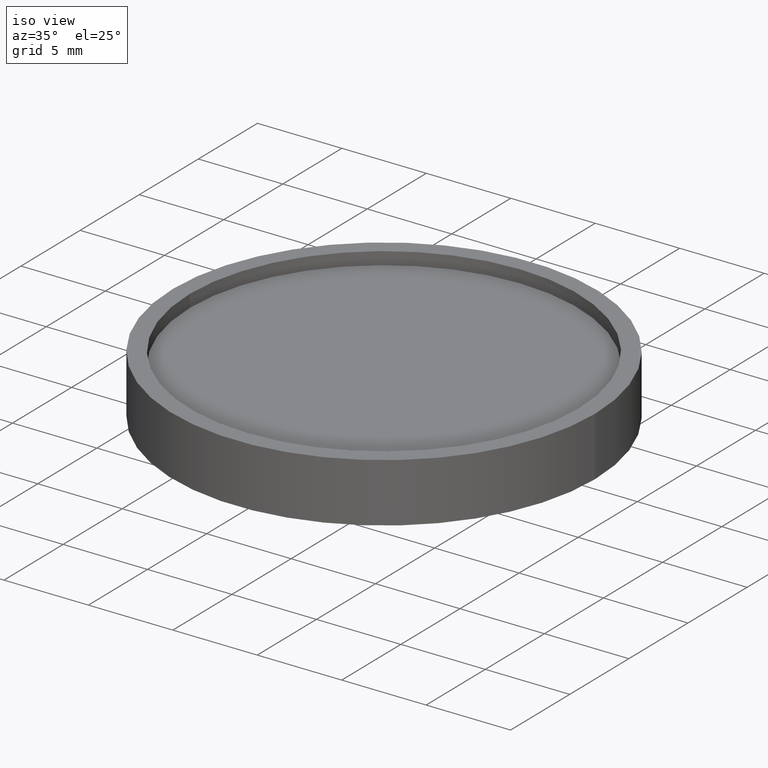
[diagram: clean part render]
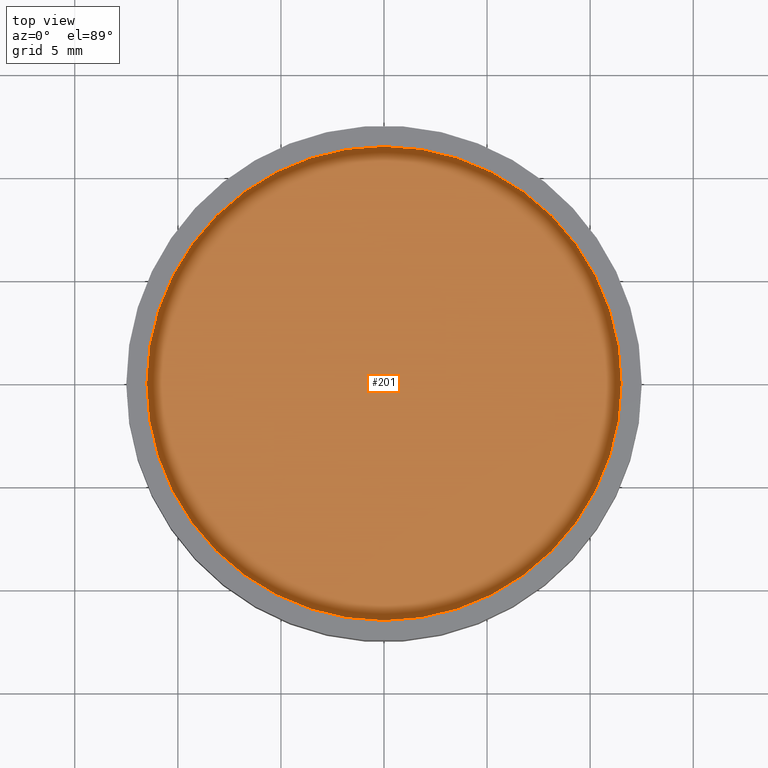
[diagram: tour spotlight — one face highlighted and labeled with its STEP entity id]
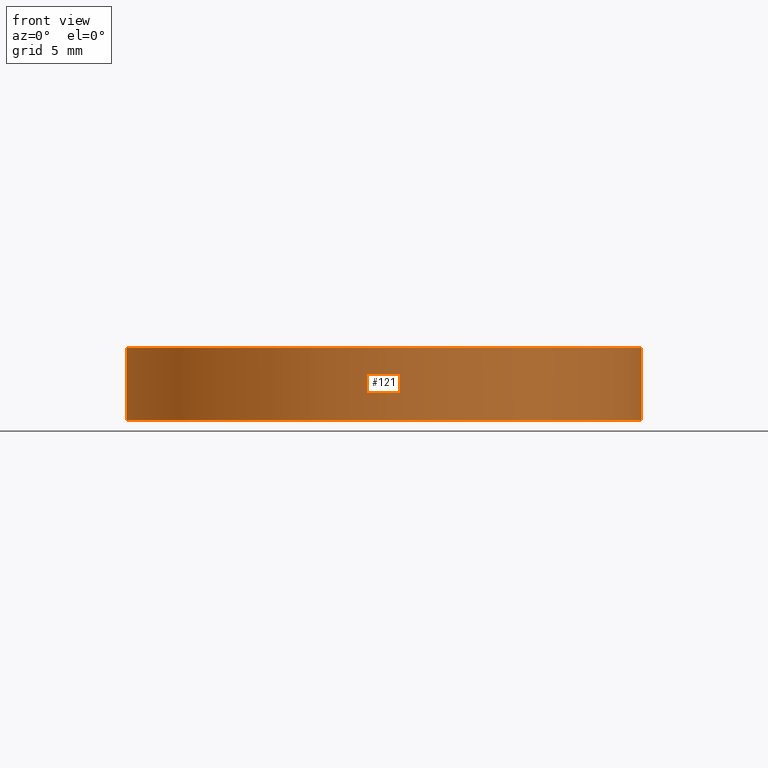
[diagram: tour spotlight — one face highlighted and labeled with its STEP entity id]
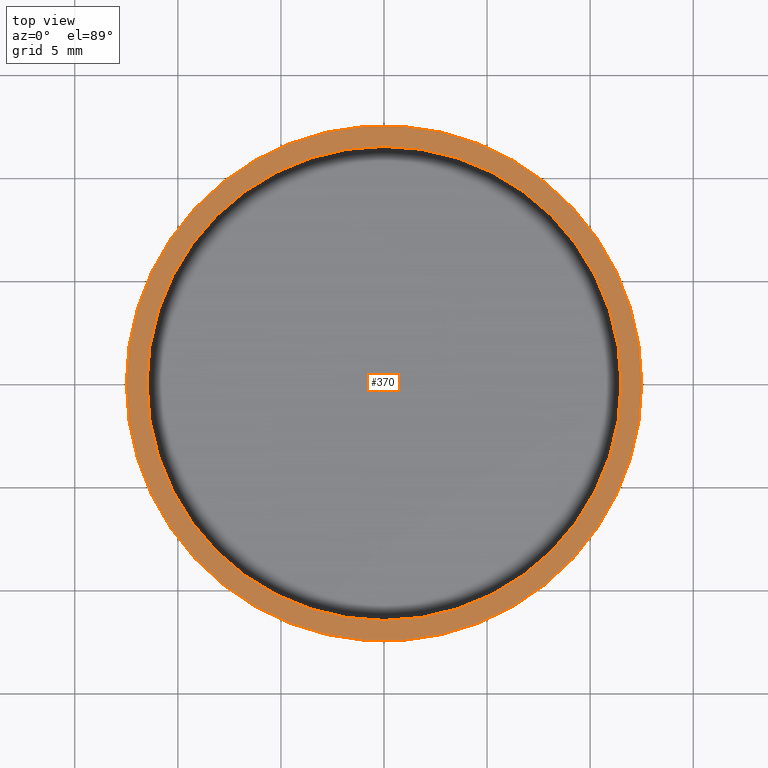
[diagram: tour spotlight — one face highlighted and labeled with its STEP entity id]
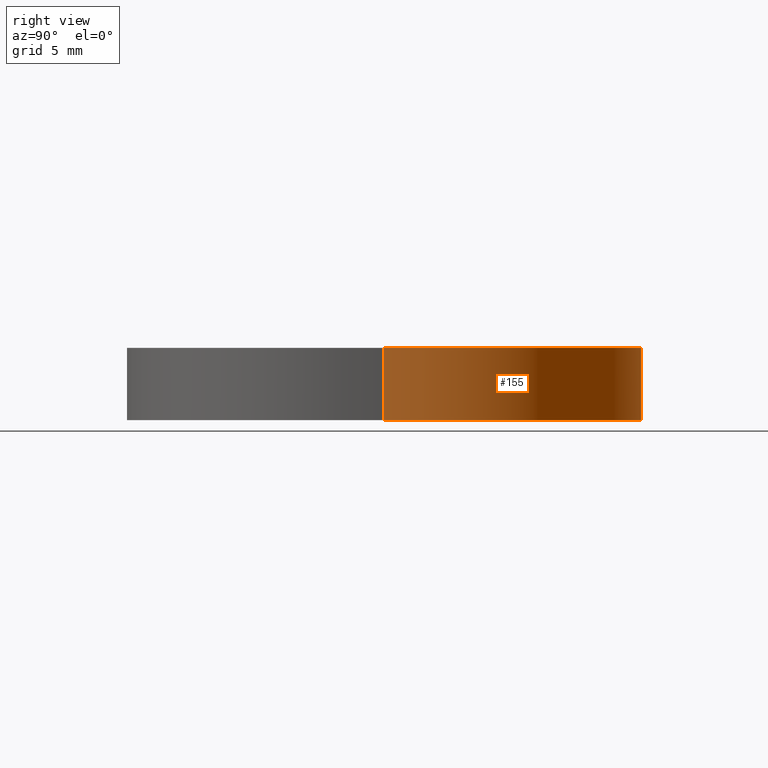
[diagram: tour spotlight — one face highlighted and labeled with its STEP entity id]
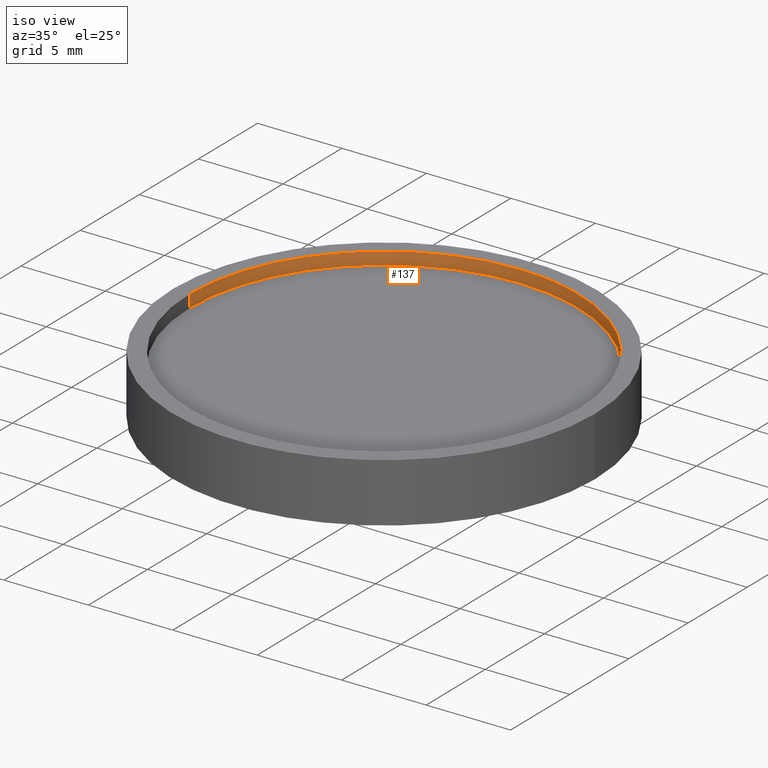
[diagram: tour spotlight — one face highlighted and labeled with its STEP entity id]
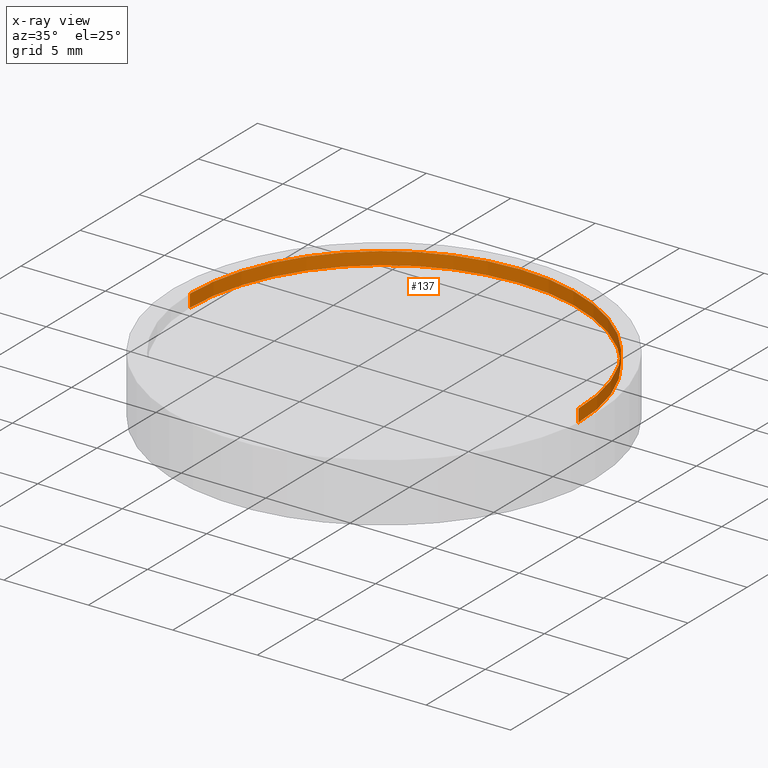
[diagram: x-ray of the same camera — body ghosted, this tour face saturated]
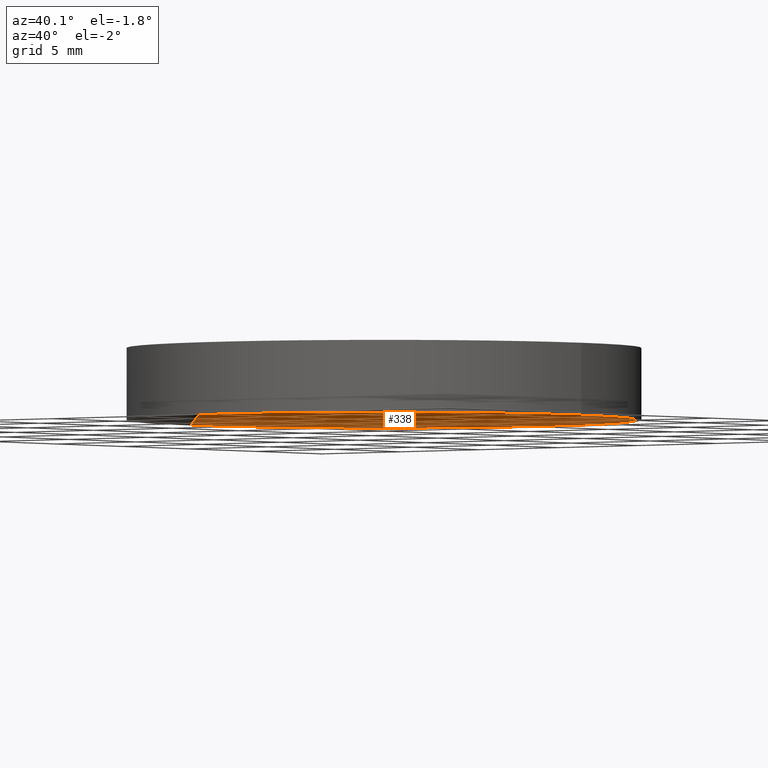
[diagram: tour spotlight — one face highlighted and labeled with its STEP entity id]
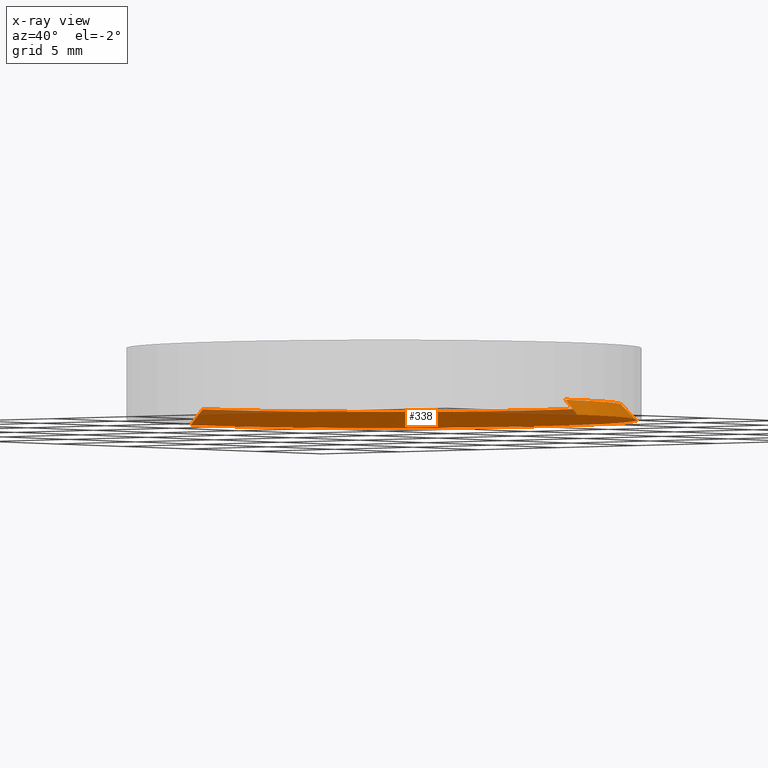
[diagram: x-ray of the same camera — body ghosted, this tour face saturated]
A machine part: a face-by-face anatomy tour. The part has 10 B-rep faces; the first image is the clean iso view, then the 6 largest visible faces are spotlighted one at a time (largest first), each with its STEP entity span.

Face 1 — top view, entity #201. In plain terms, the highlighted planar face has unit normal (0, 0, 1).
Definition (entity closure, byte-faithful):
#1 = EDGE_CURVE ( 'NONE', #127, #340, #187, .T. ) ;
#28 = CARTESIAN_POINT ( 'NONE',  ( 0.000000000000000000, 0.000000000000000000, 2.750000000000000000 ) ) ;
#42 = CARTESIAN_POINT ( 'NONE',  ( 0.000000000000000000, 0.000000000000000000, 2.750000000000000000 ) ) ;
#60 = FACE_OUTER_BOUND ( 'NONE', #249, .T. ) ;
#95 = DIRECTION ( 'NONE',  ( 1.000000000000000000, 0.000000000000000000, -0.000000000000000000 ) ) ;
#111 = AXIS2_PLACEMENT_3D ( 'NONE', #140, #160, #363 ) ;
#126 = DIRECTION ( 'NONE',  ( 0.000000000000000000, 0.000000000000000000, 1.000000000000000000 ) ) ;
#127 = VERTEX_POINT ( 'NONE', #245 ) ;
#140 = CARTESIAN_POINT ( 'NONE',  ( 0.000000000000000000, 0.000000000000000000, 2.750000000000000000 ) ) ;
#160 = DIRECTION ( 'NONE',  ( 0.000000000000000000, 0.000000000000000000, 1.000000000000000000 ) ) ;
#171 = DIRECTION ( 'NONE',  ( 0.000000000000000000, 0.000000000000000000, 1.000000000000000000 ) ) ;
#182 = AXIS2_PLACEMENT_3D ( 'NONE', #28, #126, #95 ) ;
#187 = CIRCLE ( 'NONE', #326, 11.50000000000000000 ) ;
#189 = PLANE ( 'NONE',  #182 ) ;
#201 = ADVANCED_FACE ( 'NONE', ( #60 ), #189, .T. ) ;
#245 = CARTESIAN_POINT ( 'NONE',  ( 11.50000000000000000, 0.000000000000000000, 2.750000000000000000 ) ) ;
#249 = EDGE_LOOP ( 'NONE', ( #377, #379 ) ) ;
#269 = EDGE_CURVE ( 'NONE', #340, #127, #322, .T. ) ;
#301 = DIRECTION ( 'NONE',  ( 1.000000000000000000, 0.000000000000000000, 0.000000000000000000 ) ) ;
#322 = CIRCLE ( 'NONE', #111, 11.50000000000000000 ) ;
#326 = AXIS2_PLACEMENT_3D ( 'NONE', #42, #171, #301 ) ;
#340 = VERTEX_POINT ( 'NONE', #385 ) ;
#363 = DIRECTION ( 'NONE',  ( 1.000000000000000000, 0.000000000000000000, 0.000000000000000000 ) ) ;
#377 = ORIENTED_EDGE ( 'NONE', *, *, #1, .T. ) ;
#379 = ORIENTED_EDGE ( 'NONE', *, *, #269, .T. ) ;
#385 = CARTESIAN_POINT ( 'NONE',  ( -11.50000000000000000, 1.408343819019456176E-15, 2.750000000000000000 ) ) ;

Face 2 — front view, entity #121. In plain terms, the highlighted cylindrical surface (partial cylindrical patch) has radius 12.5 mm, axis along (-0, -0, -1).
Definition (entity closure, byte-faithful):
#3 = CYLINDRICAL_SURFACE ( 'NONE', #248, 12.50000000000000000 ) ;
#8 = AXIS2_PLACEMENT_3D ( 'NONE', #204, #136, #351 ) ;
#26 = VECTOR ( 'NONE', #238, 1000.000000000000000 ) ;
#30 = DIRECTION ( 'NONE',  ( 0.000000000000000000, 0.000000000000000000, 1.000000000000000000 ) ) ;
#31 = CARTESIAN_POINT ( 'NONE',  ( -12.50000000000000000, 0.000000000000000000, 3.500000000000000000 ) ) ;
#56 = AXIS2_PLACEMENT_3D ( 'NONE', #63, #30, #412 ) ;
#63 = CARTESIAN_POINT ( 'NONE',  ( 0.000000000000000000, 0.000000000000000000, 0.000000000000000000 ) ) ;
#67 = EDGE_LOOP ( 'NONE', ( #72, #159, #222, #409 ) ) ;
#72 = ORIENTED_EDGE ( 'NONE', *, *, #75, .F. ) ;
#75 = EDGE_CURVE ( 'NONE', #183, #284, #138, .T. ) ;
#106 = EDGE_CURVE ( 'NONE', #185, #183, #279, .T. ) ;
#116 = DIRECTION ( 'NONE',  ( -1.000000000000000000, 0.000000000000000000, 0.000000000000000000 ) ) ;
#121 = ADVANCED_FACE ( 'NONE', ( #232 ), #3, .T. ) ;
#136 = DIRECTION ( 'NONE',  ( 0.000000000000000000, 0.000000000000000000, 1.000000000000000000 ) ) ;
#138 = LINE ( 'NONE', #420, #286 ) ;
#150 = EDGE_CURVE ( 'NONE', #185, #293, #206, .T. ) ;
#159 = ORIENTED_EDGE ( 'NONE', *, *, #106, .F. ) ;
#183 = VERTEX_POINT ( 'NONE', #398 ) ;
#185 = VERTEX_POINT ( 'NONE', #31 ) ;
#204 = CARTESIAN_POINT ( 'NONE',  ( 0.000000000000000000, 0.000000000000000000, 3.500000000000000000 ) ) ;
#206 = LINE ( 'NONE', #215, #26 ) ;
#211 = EDGE_CURVE ( 'NONE', #293, #284, #235, .T. ) ;
#215 = CARTESIAN_POINT ( 'NONE',  ( -12.50000000000000000, 0.000000000000000000, 3.500000000000000000 ) ) ;
#222 = ORIENTED_EDGE ( 'NONE', *, *, #150, .T. ) ;
#231 = CARTESIAN_POINT ( 'NONE',  ( 12.50000000000000000, 1.530808498934191521E-15, 0.000000000000000000 ) ) ;
#232 = FACE_OUTER_BOUND ( 'NONE', #67, .T. ) ;
#235 = CIRCLE ( 'NONE', #56, 12.50000000000000000 ) ;
#238 = DIRECTION ( 'NONE',  ( -0.000000000000000000, -0.000000000000000000, -1.000000000000000000 ) ) ;
#248 = AXIS2_PLACEMENT_3D ( 'NONE', #402, #312, #116 ) ;
#267 = DIRECTION ( 'NONE',  ( -0.000000000000000000, -0.000000000000000000, -1.000000000000000000 ) ) ;
#279 = CIRCLE ( 'NONE', #8, 12.50000000000000000 ) ;
#284 = VERTEX_POINT ( 'NONE', #231 ) ;
#286 = VECTOR ( 'NONE', #267, 1000.000000000000000 ) ;
#293 = VERTEX_POINT ( 'NONE', #350 ) ;
#312 = DIRECTION ( 'NONE',  ( -0.000000000000000000, -0.000000000000000000, -1.000000000000000000 ) ) ;
#350 = CARTESIAN_POINT ( 'NONE',  ( -12.50000000000000000, 0.000000000000000000, 0.000000000000000000 ) ) ;
#351 = DIRECTION ( 'NONE',  ( 1.000000000000000000, 0.000000000000000000, 0.000000000000000000 ) ) ;
#398 = CARTESIAN_POINT ( 'NONE',  ( 12.50000000000000000, 1.530808498934191521E-15, 3.500000000000000000 ) ) ;
#402 = CARTESIAN_POINT ( 'NONE',  ( 0.000000000000000000, 0.000000000000000000, 3.500000000000000000 ) ) ;
#409 = ORIENTED_EDGE ( 'NONE', *, *, #211, .T. ) ;
#412 = DIRECTION ( 'NONE',  ( 1.000000000000000000, 0.000000000000000000, 0.000000000000000000 ) ) ;
#420 = CARTESIAN_POINT ( 'NONE',  ( 12.50000000000000000, 1.530808498934191521E-15, 3.500000000000000000 ) ) ;

Face 3 — top view, entity #370. In plain terms, the highlighted planar face has unit normal (0, 0, 1).
Definition (entity closure, byte-faithful):
#7 = CIRCLE ( 'NONE', #52, 11.50000000000000000 ) ;
#8 = AXIS2_PLACEMENT_3D ( 'NONE', #204, #136, #351 ) ;
#12 = FACE_BOUND ( 'NONE', #349, .T. ) ;
#29 = ORIENTED_EDGE ( 'NONE', *, *, #106, .T. ) ;
#31 = CARTESIAN_POINT ( 'NONE',  ( -12.50000000000000000, 0.000000000000000000, 3.500000000000000000 ) ) ;
#36 = PLANE ( 'NONE',  #165 ) ;
#39 = AXIS2_PLACEMENT_3D ( 'NONE', #278, #157, #282 ) ;
#52 = AXIS2_PLACEMENT_3D ( 'NONE', #280, #364, #240 ) ;
#71 = DIRECTION ( 'NONE',  ( 0.000000000000000000, 0.000000000000000000, 1.000000000000000000 ) ) ;
#73 = EDGE_LOOP ( 'NONE', ( #29, #97 ) ) ;
#97 = ORIENTED_EDGE ( 'NONE', *, *, #358, .T. ) ;
#106 = EDGE_CURVE ( 'NONE', #185, #183, #279, .T. ) ;
#136 = DIRECTION ( 'NONE',  ( 0.000000000000000000, 0.000000000000000000, 1.000000000000000000 ) ) ;
#147 = CARTESIAN_POINT ( 'NONE',  ( -11.50000000000000000, 1.408343819019456176E-15, 3.500000000000000000 ) ) ;
#149 = CARTESIAN_POINT ( 'NONE',  ( 0.000000000000000000, 0.000000000000000000, 3.500000000000000000 ) ) ;
#151 = DIRECTION ( 'NONE',  ( 1.000000000000000000, 0.000000000000000000, -0.000000000000000000 ) ) ;
#157 = DIRECTION ( 'NONE',  ( 0.000000000000000000, 0.000000000000000000, 1.000000000000000000 ) ) ;
#158 = VERTEX_POINT ( 'NONE', #147 ) ;
#161 = EDGE_CURVE ( 'NONE', #223, #158, #7, .T. ) ;
#165 = AXIS2_PLACEMENT_3D ( 'NONE', #149, #287, #151 ) ;
#174 = DIRECTION ( 'NONE',  ( 1.000000000000000000, 0.000000000000000000, 0.000000000000000000 ) ) ;
#183 = VERTEX_POINT ( 'NONE', #398 ) ;
#185 = VERTEX_POINT ( 'NONE', #31 ) ;
#204 = CARTESIAN_POINT ( 'NONE',  ( 0.000000000000000000, 0.000000000000000000, 3.500000000000000000 ) ) ;
#219 = ORIENTED_EDGE ( 'NONE', *, *, #161, .F. ) ;
#220 = CIRCLE ( 'NONE', #39, 11.50000000000000000 ) ;
#223 = VERTEX_POINT ( 'NONE', #254 ) ;
#240 = DIRECTION ( 'NONE',  ( 1.000000000000000000, 0.000000000000000000, 0.000000000000000000 ) ) ;
#254 = CARTESIAN_POINT ( 'NONE',  ( 11.50000000000000000, 0.000000000000000000, 3.500000000000000000 ) ) ;
#258 = ORIENTED_EDGE ( 'NONE', *, *, #390, .F. ) ;
#264 = FACE_OUTER_BOUND ( 'NONE', #73, .T. ) ;
#275 = CARTESIAN_POINT ( 'NONE',  ( 0.000000000000000000, 0.000000000000000000, 3.500000000000000000 ) ) ;
#278 = CARTESIAN_POINT ( 'NONE',  ( 0.000000000000000000, 0.000000000000000000, 3.500000000000000000 ) ) ;
#279 = CIRCLE ( 'NONE', #8, 12.50000000000000000 ) ;
#280 = CARTESIAN_POINT ( 'NONE',  ( 0.000000000000000000, 0.000000000000000000, 3.500000000000000000 ) ) ;
#282 = DIRECTION ( 'NONE',  ( 1.000000000000000000, 0.000000000000000000, 0.000000000000000000 ) ) ;
#287 = DIRECTION ( 'NONE',  ( 0.000000000000000000, 0.000000000000000000, 1.000000000000000000 ) ) ;
#324 = CIRCLE ( 'NONE', #376, 12.50000000000000000 ) ;
#349 = EDGE_LOOP ( 'NONE', ( #219, #258 ) ) ;
#351 = DIRECTION ( 'NONE',  ( 1.000000000000000000, 0.000000000000000000, 0.000000000000000000 ) ) ;
#358 = EDGE_CURVE ( 'NONE', #183, #185, #324, .T. ) ;
#364 = DIRECTION ( 'NONE',  ( 0.000000000000000000, 0.000000000000000000, 1.000000000000000000 ) ) ;
#370 = ADVANCED_FACE ( 'NONE', ( #12, #264 ), #36, .T. ) ;
#376 = AXIS2_PLACEMENT_3D ( 'NONE', #275, #71, #174 ) ;
#390 = EDGE_CURVE ( 'NONE', #158, #223, #220, .T. ) ;
#398 = CARTESIAN_POINT ( 'NONE',  ( 12.50000000000000000, 1.530808498934191521E-15, 3.500000000000000000 ) ) ;

Face 4 — right view, entity #155. In plain terms, the highlighted cylindrical surface (partial cylindrical patch) has radius 12.5 mm, axis along (-0, -0, -1).
Definition (entity closure, byte-faithful):
#17 = DIRECTION ( 'NONE',  ( 1.000000000000000000, 0.000000000000000000, 0.000000000000000000 ) ) ;
#19 = CARTESIAN_POINT ( 'NONE',  ( 0.000000000000000000, 0.000000000000000000, 3.500000000000000000 ) ) ;
#25 = ORIENTED_EDGE ( 'NONE', *, *, #75, .T. ) ;
#26 = VECTOR ( 'NONE', #238, 1000.000000000000000 ) ;
#31 = CARTESIAN_POINT ( 'NONE',  ( -12.50000000000000000, 0.000000000000000000, 3.500000000000000000 ) ) ;
#59 = ORIENTED_EDGE ( 'NONE', *, *, #383, .T. ) ;
#71 = DIRECTION ( 'NONE',  ( 0.000000000000000000, 0.000000000000000000, 1.000000000000000000 ) ) ;
#75 = EDGE_CURVE ( 'NONE', #183, #284, #138, .T. ) ;
#82 = DIRECTION ( 'NONE',  ( -1.000000000000000000, 0.000000000000000000, 0.000000000000000000 ) ) ;
#90 = DIRECTION ( 'NONE',  ( 0.000000000000000000, 0.000000000000000000, 1.000000000000000000 ) ) ;
#138 = LINE ( 'NONE', #420, #286 ) ;
#150 = EDGE_CURVE ( 'NONE', #185, #293, #206, .T. ) ;
#155 = ADVANCED_FACE ( 'NONE', ( #368 ), #272, .T. ) ;
#174 = DIRECTION ( 'NONE',  ( 1.000000000000000000, 0.000000000000000000, 0.000000000000000000 ) ) ;
#183 = VERTEX_POINT ( 'NONE', #398 ) ;
#185 = VERTEX_POINT ( 'NONE', #31 ) ;
#206 = LINE ( 'NONE', #215, #26 ) ;
#215 = CARTESIAN_POINT ( 'NONE',  ( -12.50000000000000000, 0.000000000000000000, 3.500000000000000000 ) ) ;
#231 = CARTESIAN_POINT ( 'NONE',  ( 12.50000000000000000, 1.530808498934191521E-15, 0.000000000000000000 ) ) ;
#238 = DIRECTION ( 'NONE',  ( -0.000000000000000000, -0.000000000000000000, -1.000000000000000000 ) ) ;
#251 = CIRCLE ( 'NONE', #274, 12.50000000000000000 ) ;
#267 = DIRECTION ( 'NONE',  ( -0.000000000000000000, -0.000000000000000000, -1.000000000000000000 ) ) ;
#272 = CYLINDRICAL_SURFACE ( 'NONE', #392, 12.50000000000000000 ) ;
#274 = AXIS2_PLACEMENT_3D ( 'NONE', #316, #90, #17 ) ;
#275 = CARTESIAN_POINT ( 'NONE',  ( 0.000000000000000000, 0.000000000000000000, 3.500000000000000000 ) ) ;
#284 = VERTEX_POINT ( 'NONE', #231 ) ;
#286 = VECTOR ( 'NONE', #267, 1000.000000000000000 ) ;
#293 = VERTEX_POINT ( 'NONE', #350 ) ;
#316 = CARTESIAN_POINT ( 'NONE',  ( 0.000000000000000000, 0.000000000000000000, 0.000000000000000000 ) ) ;
#317 = ORIENTED_EDGE ( 'NONE', *, *, #358, .F. ) ;
#318 = ORIENTED_EDGE ( 'NONE', *, *, #150, .F. ) ;
#324 = CIRCLE ( 'NONE', #376, 12.50000000000000000 ) ;
#346 = EDGE_LOOP ( 'NONE', ( #317, #25, #59, #318 ) ) ;
#350 = CARTESIAN_POINT ( 'NONE',  ( -12.50000000000000000, 0.000000000000000000, 0.000000000000000000 ) ) ;
#358 = EDGE_CURVE ( 'NONE', #183, #185, #324, .T. ) ;
#368 = FACE_OUTER_BOUND ( 'NONE', #346, .T. ) ;
#376 = AXIS2_PLACEMENT_3D ( 'NONE', #275, #71, #174 ) ;
#383 = EDGE_CURVE ( 'NONE', #284, #293, #251, .T. ) ;
#392 = AXIS2_PLACEMENT_3D ( 'NONE', #19, #396, #82 ) ;
#396 = DIRECTION ( 'NONE',  ( -0.000000000000000000, -0.000000000000000000, -1.000000000000000000 ) ) ;
#398 = CARTESIAN_POINT ( 'NONE',  ( 12.50000000000000000, 1.530808498934191521E-15, 3.500000000000000000 ) ) ;
#420 = CARTESIAN_POINT ( 'NONE',  ( 12.50000000000000000, 1.530808498934191521E-15, 3.500000000000000000 ) ) ;

Face 5 — iso view, entity #137. An x-ray twin of the same camera follows (body ghosted, this face saturated) — the face is partly hidden behind the body. In plain terms, the highlighted cylindrical surface (partial cylindrical patch) has radius 11.5 mm, axis along (-0, -0, 1).
Definition (entity closure, byte-faithful):
#1 = EDGE_CURVE ( 'NONE', #127, #340, #187, .T. ) ;
#7 = CIRCLE ( 'NONE', #52, 11.50000000000000000 ) ;
#42 = CARTESIAN_POINT ( 'NONE',  ( 0.000000000000000000, 0.000000000000000000, 2.750000000000000000 ) ) ;
#49 = DIRECTION ( 'NONE',  ( 1.000000000000000000, 0.000000000000000000, 0.000000000000000000 ) ) ;
#52 = AXIS2_PLACEMENT_3D ( 'NONE', #280, #364, #240 ) ;
#86 = FACE_OUTER_BOUND ( 'NONE', #93, .T. ) ;
#93 = EDGE_LOOP ( 'NONE', ( #131, #191, #406, #124 ) ) ;
#100 = LINE ( 'NONE', #394, #218 ) ;
#102 = DIRECTION ( 'NONE',  ( -0.000000000000000000, -0.000000000000000000, 1.000000000000000000 ) ) ;
#124 = ORIENTED_EDGE ( 'NONE', *, *, #161, .T. ) ;
#127 = VERTEX_POINT ( 'NONE', #245 ) ;
#131 = ORIENTED_EDGE ( 'NONE', *, *, #314, .F. ) ;
#137 = ADVANCED_FACE ( 'NONE', ( #86 ), #310, .F. ) ;
#144 = CARTESIAN_POINT ( 'NONE',  ( 11.50000000000000000, 0.000000000000000000, 2.750000000000000000 ) ) ;
#147 = CARTESIAN_POINT ( 'NONE',  ( -11.50000000000000000, 1.408343819019456176E-15, 3.500000000000000000 ) ) ;
#158 = VERTEX_POINT ( 'NONE', #147 ) ;
#161 = EDGE_CURVE ( 'NONE', #223, #158, #7, .T. ) ;
#171 = DIRECTION ( 'NONE',  ( 0.000000000000000000, 0.000000000000000000, 1.000000000000000000 ) ) ;
#176 = CARTESIAN_POINT ( 'NONE',  ( 0.000000000000000000, 0.000000000000000000, 2.750000000000000000 ) ) ;
#179 = DIRECTION ( 'NONE',  ( -0.000000000000000000, -0.000000000000000000, 1.000000000000000000 ) ) ;
#187 = CIRCLE ( 'NONE', #326, 11.50000000000000000 ) ;
#191 = ORIENTED_EDGE ( 'NONE', *, *, #1, .F. ) ;
#199 = VECTOR ( 'NONE', #237, 1000.000000000000000 ) ;
#218 = VECTOR ( 'NONE', #102, 1000.000000000000000 ) ;
#223 = VERTEX_POINT ( 'NONE', #254 ) ;
#237 = DIRECTION ( 'NONE',  ( -0.000000000000000000, -0.000000000000000000, 1.000000000000000000 ) ) ;
#240 = DIRECTION ( 'NONE',  ( 1.000000000000000000, 0.000000000000000000, 0.000000000000000000 ) ) ;
#245 = CARTESIAN_POINT ( 'NONE',  ( 11.50000000000000000, 0.000000000000000000, 2.750000000000000000 ) ) ;
#254 = CARTESIAN_POINT ( 'NONE',  ( 11.50000000000000000, 0.000000000000000000, 3.500000000000000000 ) ) ;
#280 = CARTESIAN_POINT ( 'NONE',  ( 0.000000000000000000, 0.000000000000000000, 3.500000000000000000 ) ) ;
#301 = DIRECTION ( 'NONE',  ( 1.000000000000000000, 0.000000000000000000, 0.000000000000000000 ) ) ;
#302 = EDGE_CURVE ( 'NONE', #127, #223, #305, .T. ) ;
#305 = LINE ( 'NONE', #144, #199 ) ;
#310 = CYLINDRICAL_SURFACE ( 'NONE', #367, 11.50000000000000000 ) ;
#314 = EDGE_CURVE ( 'NONE', #340, #158, #100, .T. ) ;
#326 = AXIS2_PLACEMENT_3D ( 'NONE', #42, #171, #301 ) ;
#340 = VERTEX_POINT ( 'NONE', #385 ) ;
#364 = DIRECTION ( 'NONE',  ( 0.000000000000000000, 0.000000000000000000, 1.000000000000000000 ) ) ;
#367 = AXIS2_PLACEMENT_3D ( 'NONE', #176, #179, #49 ) ;
#385 = CARTESIAN_POINT ( 'NONE',  ( -11.50000000000000000, 1.408343819019456176E-15, 2.750000000000000000 ) ) ;
#394 = CARTESIAN_POINT ( 'NONE',  ( -11.50000000000000000, 1.408343819019456176E-15, 2.750000000000000000 ) ) ;
#406 = ORIENTED_EDGE ( 'NONE', *, *, #302, .T. ) ;

Face 6 — auxiliary view, entity #338. An x-ray twin of the same camera follows (body ghosted, this face saturated) — the face is partly hidden behind the body. In plain terms, the highlighted conical surface has half-angle 45 deg.
Definition (entity closure, byte-faithful):
#2 = AXIS2_PLACEMENT_3D ( 'NONE', #262, #266, #101 ) ;
#18 = EDGE_CURVE ( 'NONE', #105, #344, #168, .T. ) ;
#33 = VECTOR ( 'NONE', #306, 1000.000000000000000 ) ;
#43 = CARTESIAN_POINT ( 'NONE',  ( -12.25000000000000711, 0.000000000000000000, 0.000000000000000000 ) ) ;
#55 = VERTEX_POINT ( 'NONE', #109 ) ;
#76 = CARTESIAN_POINT ( 'NONE',  ( 12.25000000000000711, 1.500192328955508523E-15, 0.000000000000000000 ) ) ;
#79 = CARTESIAN_POINT ( 'NONE',  ( -11.50000000000000000, 0.000000000000000000, 0.7500000000000093259 ) ) ;
#80 = LINE ( 'NONE', #208, #33 ) ;
#81 = DIRECTION ( 'NONE',  ( 0.000000000000000000, 0.000000000000000000, -1.000000000000000000 ) ) ;
#101 = DIRECTION ( 'NONE',  ( 1.000000000000000000, 0.000000000000000000, 0.000000000000000000 ) ) ;
#105 = VERTEX_POINT ( 'NONE', #76 ) ;
#109 = CARTESIAN_POINT ( 'NONE',  ( 11.50000000000000000, 1.454268073987482448E-15, 0.7500000000000000000 ) ) ;
#115 = FACE_OUTER_BOUND ( 'NONE', #129, .T. ) ;
#125 = ORIENTED_EDGE ( 'NONE', *, *, #327, .T. ) ;
#129 = EDGE_LOOP ( 'NONE', ( #190, #320, #125, #289 ) ) ;
#135 = CARTESIAN_POINT ( 'NONE',  ( 0.000000000000000000, 0.000000000000000000, 0.7500000000000093259 ) ) ;
#139 = CONICAL_SURFACE ( 'NONE', #145, 11.50000000000000000, 0.7853981633974471688 ) ;
#145 = AXIS2_PLACEMENT_3D ( 'NONE', #135, #353, #323 ) ;
#163 = VECTOR ( 'NONE', #417, 1000.000000000000000 ) ;
#168 = CIRCLE ( 'NONE', #2, 12.25000000000000711 ) ;
#178 = EDGE_CURVE ( 'NONE', #55, #105, #80, .T. ) ;
#190 = ORIENTED_EDGE ( 'NONE', *, *, #178, .F. ) ;
#208 = CARTESIAN_POINT ( 'NONE',  ( 11.50000000000000000, 1.408343819019456176E-15, 0.7500000000000093259 ) ) ;
#227 = DIRECTION ( 'NONE',  ( -1.000000000000000000, 0.000000000000000000, 0.000000000000000000 ) ) ;
#234 = EDGE_CURVE ( 'NONE', #250, #55, #295, .T. ) ;
#250 = VERTEX_POINT ( 'NONE', #366 ) ;
#262 = CARTESIAN_POINT ( 'NONE',  ( 0.000000000000000000, 0.000000000000000000, 0.000000000000000000 ) ) ;
#266 = DIRECTION ( 'NONE',  ( 0.000000000000000000, 0.000000000000000000, 1.000000000000000000 ) ) ;
#289 = ORIENTED_EDGE ( 'NONE', *, *, #18, .F. ) ;
#295 = CIRCLE ( 'NONE', #395, 11.50000000000000000 ) ;
#306 = DIRECTION ( 'NONE',  ( 0.7071067811865467956, 8.659560562354925463E-17, -0.7071067811865483499 ) ) ;
#320 = ORIENTED_EDGE ( 'NONE', *, *, #234, .F. ) ;
#323 = DIRECTION ( 'NONE',  ( -1.000000000000000000, 0.000000000000000000, 0.000000000000000000 ) ) ;
#327 = EDGE_CURVE ( 'NONE', #250, #344, #355, .T. ) ;
#335 = CARTESIAN_POINT ( 'NONE',  ( 0.000000000000000000, 0.000000000000000000, 0.7500000000000000000 ) ) ;
#338 = ADVANCED_FACE ( 'NONE', ( #115 ), #139, .F. ) ;
#344 = VERTEX_POINT ( 'NONE', #43 ) ;
#353 = DIRECTION ( 'NONE',  ( 0.000000000000000000, 0.000000000000000000, -1.000000000000000000 ) ) ;
#355 = LINE ( 'NONE', #79, #163 ) ;
#366 = CARTESIAN_POINT ( 'NONE',  ( -11.50000000000000000, 0.000000000000000000, 0.7500000000000000000 ) ) ;
#395 = AXIS2_PLACEMENT_3D ( 'NONE', #335, #81, #227 ) ;
#417 = DIRECTION ( 'NONE',  ( -0.7071067811865467956, 0.000000000000000000, -0.7071067811865483499 ) ) ;